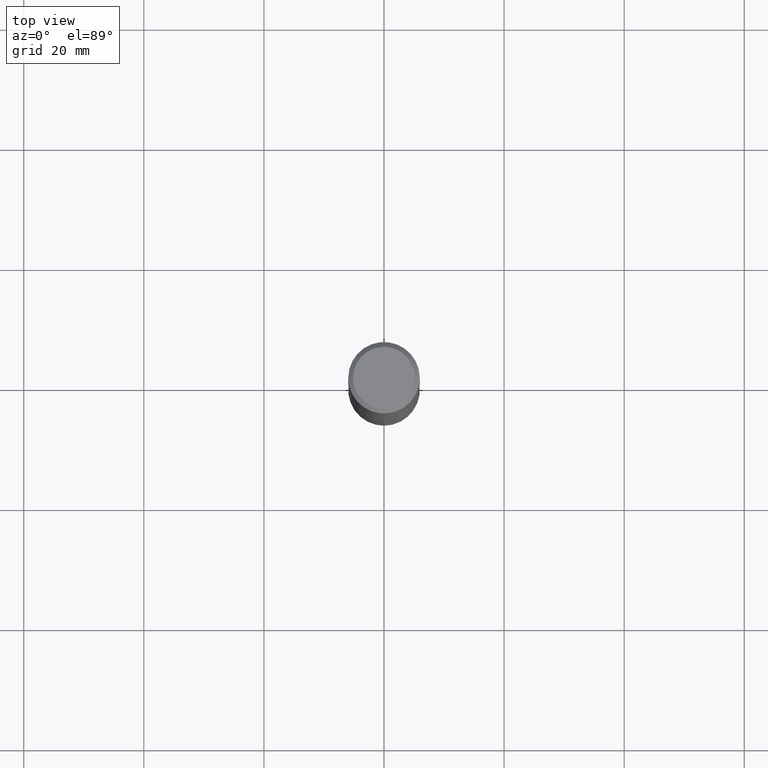
[diagram: clean part render]
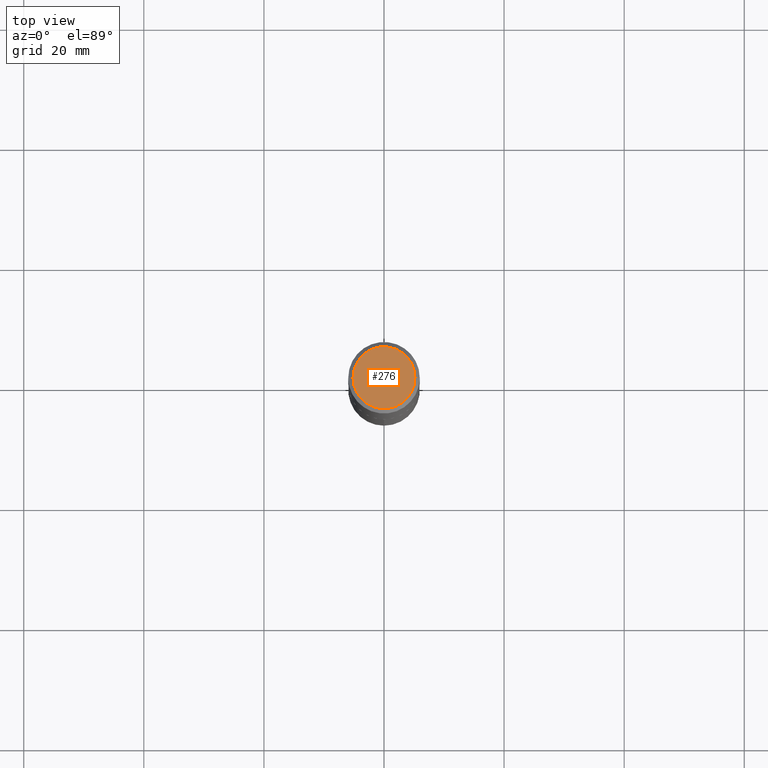
[diagram: same view with one face highlighted and labeled with its STEP entity id]
A machine part, top view. The second image highlights one B-rep face of the part: STEP entity #276.
In plain terms, the highlighted planar face has unit normal (0, -0, -1).
Its self-contained STEP definition (entity closure, byte-faithful):
#25 = ORIENTED_EDGE ( 'NONE', *, *, #320, .T. ) ;
#50 = VERTEX_POINT ( 'NONE', #101 ) ;
#63 = AXIS2_PLACEMENT_3D ( 'NONE', #284, #169, #344 ) ;
#77 = CIRCLE ( 'NONE', #159, 0.2031499999999999972 ) ;
#82 = EDGE_CURVE ( 'NONE', #50, #207, #77, .T. ) ;
#83 = CARTESIAN_POINT ( 'NONE',  ( -1.175472951769416574E-47, 1.678263842514570579E-33, 4.806738686653385169E-19 ) ) ;
#101 = CARTESIAN_POINT ( 'NONE',  ( -0.2031499999999999972, 1.473143263891388443E-15, 9.613477373205657090E-19 ) ) ;
#108 = EDGE_LOOP ( 'NONE', ( #376, #25 ) ) ;
#159 = AXIS2_PLACEMENT_3D ( 'NONE', #246, #310, #190 ) ;
#169 = DIRECTION ( 'NONE',  ( -2.445468806185136597E-29, 3.491481338843145583E-15, 1.000000000000000000 ) ) ;
#173 = FACE_OUTER_BOUND ( 'NONE', #108, .T. ) ;
#190 = DIRECTION ( 'NONE',  ( 1.000000000000000000, -6.982962677686265922E-15, 4.876167103785456779E-29 ) ) ;
#207 = VERTEX_POINT ( 'NONE', #319 ) ;
#218 = AXIS2_PLACEMENT_3D ( 'NONE', #83, #311, #315 ) ;
#246 = CARTESIAN_POINT ( 'NONE',  ( -2.350945903538833148E-47, 3.356527685029141157E-33, 9.613477373306770338E-19 ) ) ;
#276 = ADVANCED_FACE ( 'NONE', ( #173 ), #352, .F. ) ;
#284 = CARTESIAN_POINT ( 'NONE',  ( -2.350945903538833148E-47, 3.356527685029141157E-33, 9.613477373306770338E-19 ) ) ;
#298 = CIRCLE ( 'NONE', #63, 0.2031499999999999972 ) ;
#310 = DIRECTION ( 'NONE',  ( -2.445468806185136597E-29, 3.491481338843145583E-15, 1.000000000000000000 ) ) ;
#311 = DIRECTION ( 'NONE',  ( 2.438088387897960049E-29, -3.491481338843145188E-15, -1.000000000000000000 ) ) ;
#315 = DIRECTION ( 'NONE',  ( -1.000000000000000000, 6.982962677686265922E-15, -4.876176775795935793E-29 ) ) ;
#319 = CARTESIAN_POINT ( 'NONE',  ( 0.2031499999999999972, -1.555459845381891375E-15, 9.613477373410758999E-19 ) ) ;
#320 = EDGE_CURVE ( 'NONE', #207, #50, #298, .T. ) ;
#344 = DIRECTION ( 'NONE',  ( 1.000000000000000000, -6.982962677686265922E-15, 4.876167103785456779E-29 ) ) ;
#352 = PLANE ( 'NONE',  #218 ) ;
#376 = ORIENTED_EDGE ( 'NONE', *, *, #82, .T. ) ;